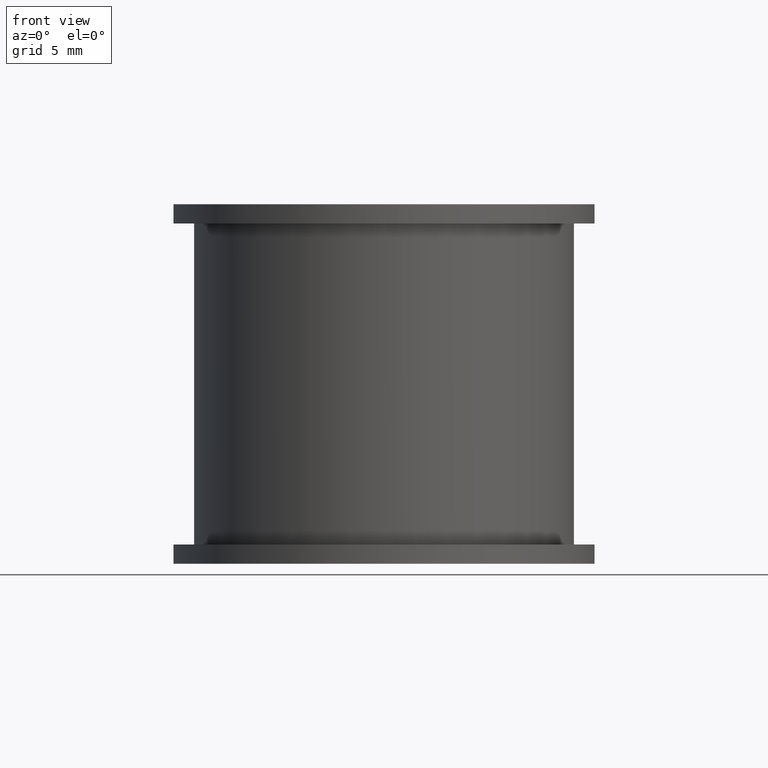
[diagram: clean part render]
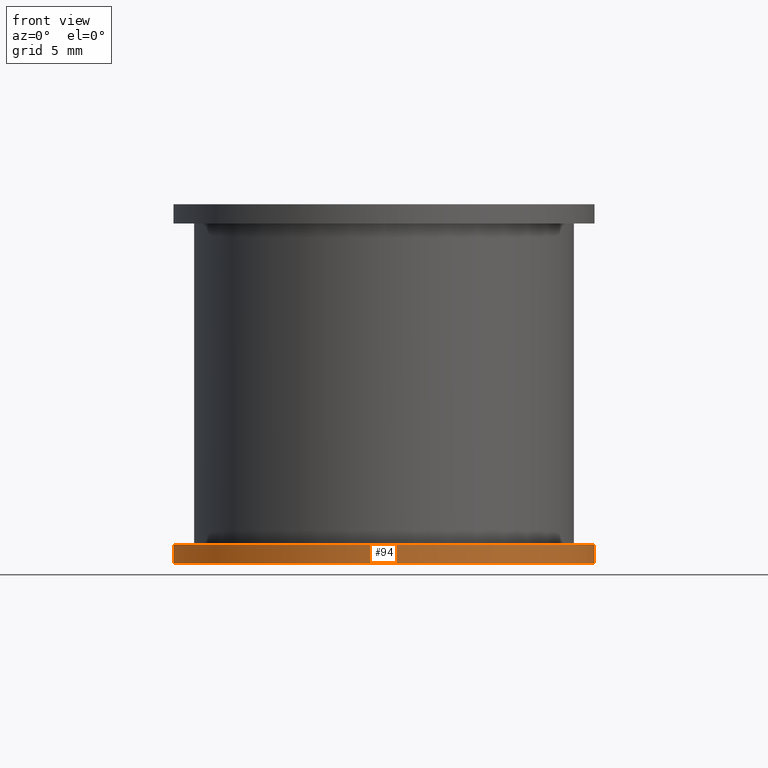
[diagram: same view with one face highlighted and labeled with its STEP entity id]
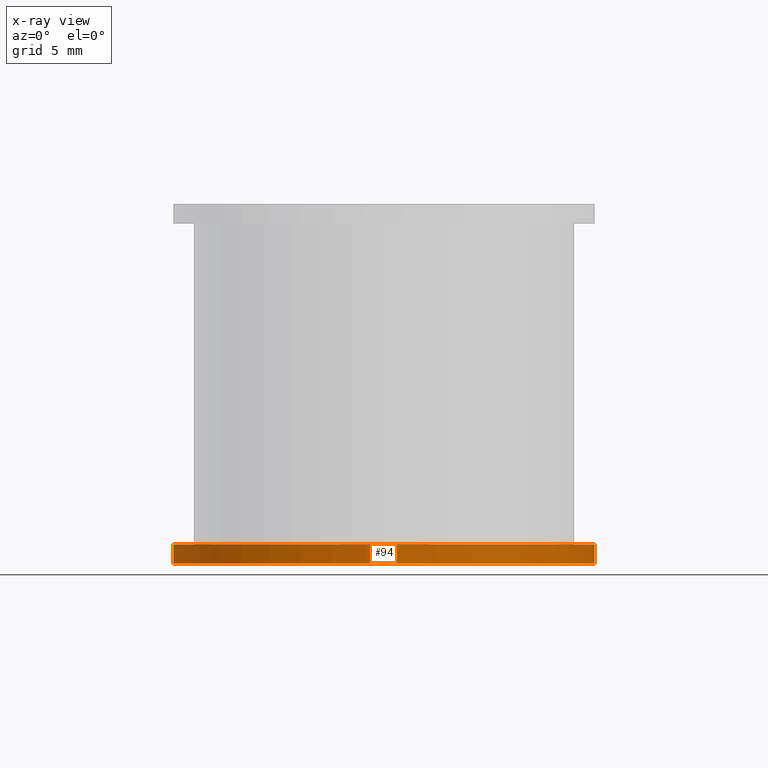
[diagram: x-ray of the same camera — body ghosted, the highlighted face saturated]
A machine part, front view. The second image highlights one B-rep face of the part: STEP entity #94.
The next image is the same camera in x-ray: the body ghosted, the highlighted face saturated — about 0% of this face is hidden behind the body in this view.
In plain terms, the highlighted cylindrical surface (partial cylindrical patch) has radius 16.4 mm, axis along (0, 0, -1).
Its self-contained STEP definition (entity closure, byte-faithful):
#94 = ADVANCED_FACE( '', ( #140 ), #141, .T. );
#140 = FACE_OUTER_BOUND( '', #192, .T. );
#141 = CYLINDRICAL_SURFACE( '', #193, 16.4000000000000 );
#192 = EDGE_LOOP( '', ( #379, #380, #381, #382 ) );
#193 = AXIS2_PLACEMENT_3D( '', #383, #384, #385 );
#379 = ORIENTED_EDGE( '', *, *, #492, .F. );
#380 = ORIENTED_EDGE( '', *, *, #495, .T. );
#381 = ORIENTED_EDGE( '', *, *, #460, .T. );
#382 = ORIENTED_EDGE( '', *, *, #481, .T. );
#383 = CARTESIAN_POINT( '', ( 0.000000000000000, 0.000000000000000, -26.5000000000000 ) );
#384 = DIRECTION( '', ( 0.000000000000000, 0.000000000000000, -1.00000000000000 ) );
#385 = DIRECTION( '', ( 0.000000000000000, 1.00000000000000, 0.000000000000000 ) );
#460 = EDGE_CURVE( '', #561, #559, #562, .T. );
#481 = EDGE_CURVE( '', #559, #591, #593, .T. );
#492 = EDGE_CURVE( '', #610, #591, #612, .T. );
#495 = EDGE_CURVE( '', #610, #561, #615, .F. );
#559 = VERTEX_POINT( '', #701 );
#561 = VERTEX_POINT( '', #703 );
#562 = CIRCLE( '', #704, 16.4000000000000 );
#591 = VERTEX_POINT( '', #745 );
#593 = LINE( '', #747, #748 );
#610 = VERTEX_POINT( '', #771 );
#612 = CIRCLE( '', #773, 16.4000000000000 );
#615 = LINE( '', #778, #779 );
#701 = CARTESIAN_POINT( '', ( 6.76825396825397, 14.9382307594044, -26.5000000000000 ) );
#703 = CARTESIAN_POINT( '', ( -6.76825396825397, 14.9382307594044, -26.5000000000000 ) );
#704 = AXIS2_PLACEMENT_3D( '', #840, #841, #842 );
#745 = CARTESIAN_POINT( '', ( 6.76825396825397, 14.9382307594044, -25.0000000000000 ) );
#747 = CARTESIAN_POINT( '', ( 6.76825396825397, 14.9382307594044, -26.5000000000000 ) );
#748 = VECTOR( '', #879, 1000.00000000000 );
#771 = CARTESIAN_POINT( '', ( -6.76825396825397, 14.9382307594044, -25.0000000000000 ) );
#773 = AXIS2_PLACEMENT_3D( '', #898, #899, #900 );
#778 = CARTESIAN_POINT( '', ( -6.76825396825397, 14.9382307594044, -26.5000000000000 ) );
#779 = VECTOR( '', #903, 1000.00000000000 );
#840 = CARTESIAN_POINT( '', ( 0.000000000000000, 0.000000000000000, -26.5000000000000 ) );
#841 = DIRECTION( '', ( 0.000000000000000, 0.000000000000000, 1.00000000000000 ) );
#842 = DIRECTION( '', ( 1.00000000000000, 0.000000000000000, 0.000000000000000 ) );
#879 = DIRECTION( '', ( 0.000000000000000, 0.000000000000000, 1.00000000000000 ) );
#898 = CARTESIAN_POINT( '', ( 0.000000000000000, 0.000000000000000, -25.0000000000000 ) );
#899 = DIRECTION( '', ( 0.000000000000000, 0.000000000000000, 1.00000000000000 ) );
#900 = DIRECTION( '', ( 1.00000000000000, 0.000000000000000, 0.000000000000000 ) );
#903 = DIRECTION( '', ( 0.000000000000000, 0.000000000000000, 1.00000000000000 ) );